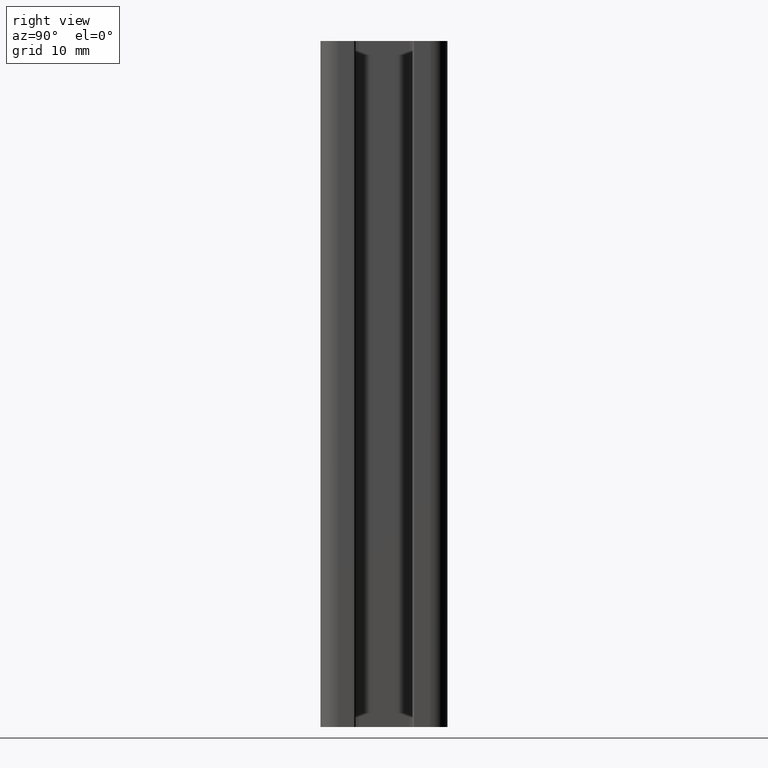
[diagram: clean part render]
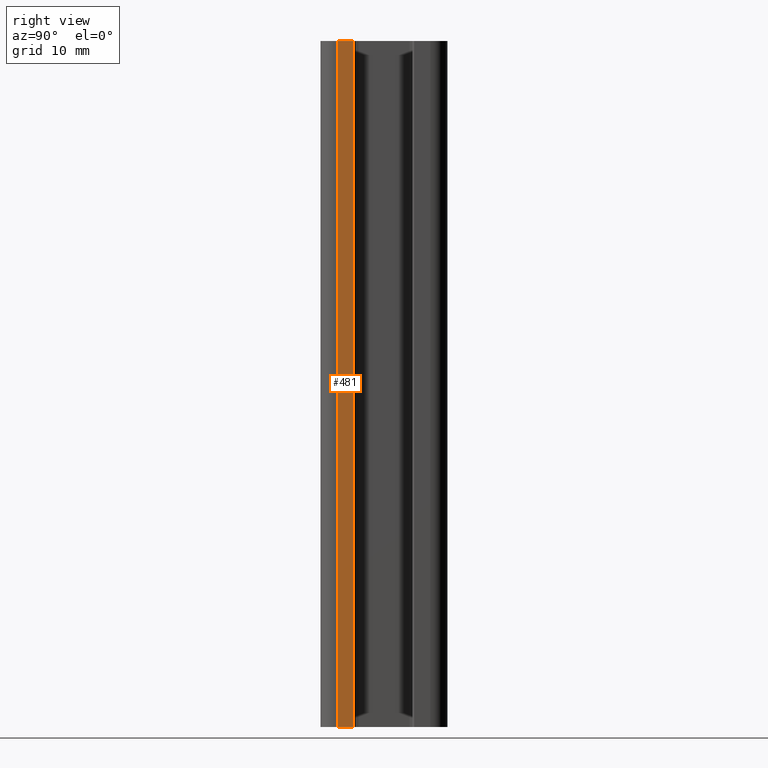
[diagram: same view with one face highlighted and labeled with its STEP entity id]
A machine part, right view. The second image highlights one B-rep face of the part: STEP entity #481.
In plain terms, the highlighted planar face has unit normal (1, 0, 0).
Its self-contained STEP definition (entity closure, byte-faithful):
#26=PLANE('',#529);
#29=LINE('',#687,#75);
#63=LINE('',#784,#109);
#71=LINE('',#807,#117);
#72=LINE('',#808,#118);
#75=VECTOR('',#546,100.);
#109=VECTOR('',#638,2.30000000000058);
#117=VECTOR('',#664,100.);
#118=VECTOR('',#665,2.30000000000058);
#145=FACE_OUTER_BOUND('',#172,.T.);
#172=EDGE_LOOP('',(#414,#415,#416,#417));
#201=VERTEX_POINT('',#683);
#203=VERTEX_POINT('',#686);
#237=VERTEX_POINT('',#782);
#243=VERTEX_POINT('',#806);
#248=EDGE_CURVE('',#201,#203,#29,.T.);
#297=EDGE_CURVE('',#201,#237,#63,.T.);
#308=EDGE_CURVE('',#243,#237,#71,.T.);
#309=EDGE_CURVE('',#203,#243,#72,.T.);
#414=ORIENTED_EDGE('',*,*,#248,.F.);
#415=ORIENTED_EDGE('',*,*,#297,.T.);
#416=ORIENTED_EDGE('',*,*,#308,.F.);
#417=ORIENTED_EDGE('',*,*,#309,.F.);
#481=ADVANCED_FACE('',(#145),#26,.T.);
#529=AXIS2_PLACEMENT_3D('',#805,#662,#663);
#546=DIRECTION('',(0.,0.,-1.));
#638=DIRECTION('',(0.,-1.,0.));
#662=DIRECTION('center_axis',(1.,0.,0.));
#663=DIRECTION('ref_axis',(0.,1.,0.));
#664=DIRECTION('',(0.,0.,1.));
#665=DIRECTION('',(0.,-1.,0.));
#683=CARTESIAN_POINT('',(22.4999999999988,-4.44999999999942,100.));
#686=CARTESIAN_POINT('',(22.4999999999988,-4.44999999999942,0.));
#687=CARTESIAN_POINT('',(22.5,-4.44999999999941,0.));
#782=CARTESIAN_POINT('',(22.5,-6.75,100.));
#784=CARTESIAN_POINT('',(22.5,-3.375,100.));
#805=CARTESIAN_POINT('Origin',(22.5,-6.75,0.));
#806=CARTESIAN_POINT('',(22.5,-6.75,0.));
#807=CARTESIAN_POINT('',(22.5,-6.75,0.));
#808=CARTESIAN_POINT('',(22.5,-3.375,0.));